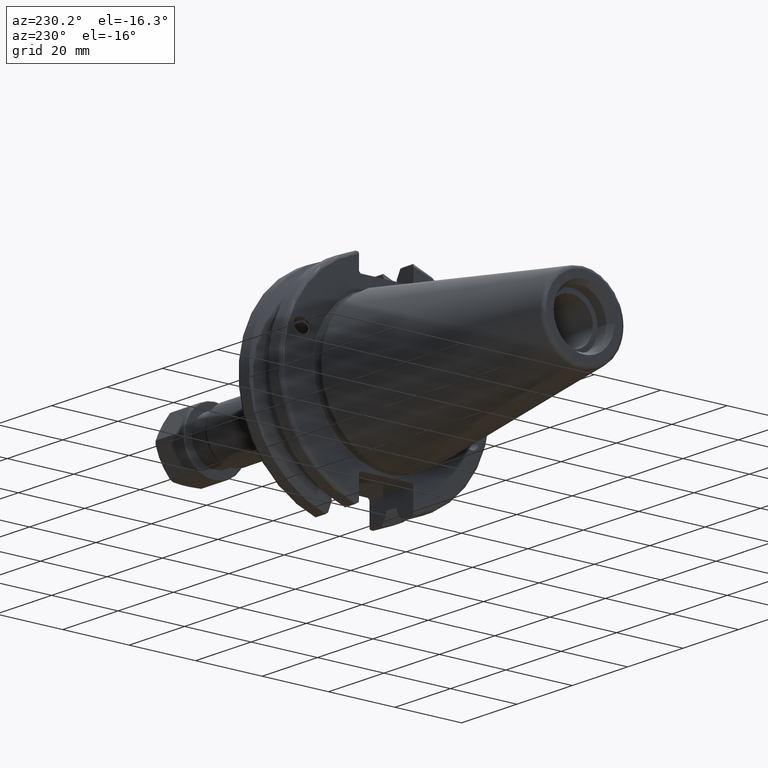
[diagram: clean part render]
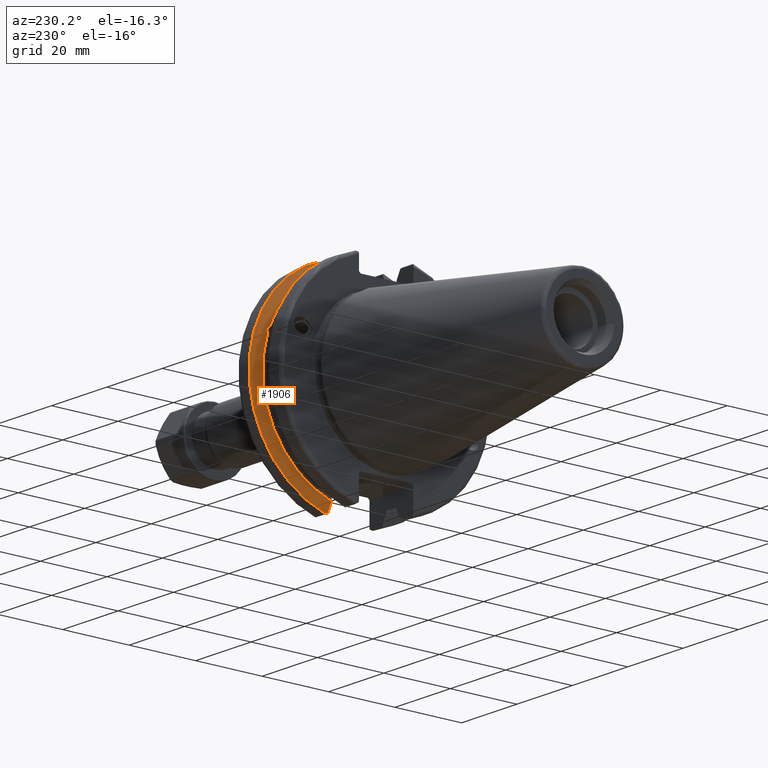
[diagram: same view with one face highlighted and labeled with its STEP entity id]
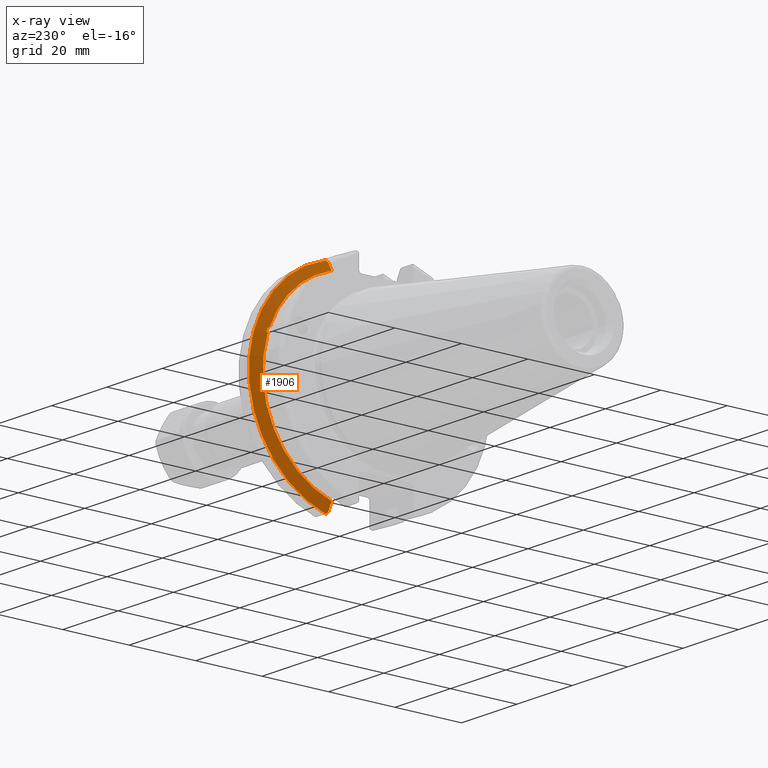
[diagram: x-ray of the same camera — body ghosted, the highlighted face saturated]
A machine part, auxiliary view. The second image highlights one B-rep face of the part: STEP entity #1906.
The next image is the same camera in x-ray: the body ghosted, the highlighted face saturated — about 0% of this face is hidden behind the body in this view.
In plain terms, the highlighted conical surface has half-angle 60 deg.
Its self-contained STEP definition (entity closure, byte-faithful):
#31=(
BOUNDED_CURVE()
B_SPLINE_CURVE(2,(#3361,#3362,#3363),.UNSPECIFIED.,.F.,.F.)
B_SPLINE_CURVE_WITH_KNOTS((3,3),(0.,0.276549142796799),.UNSPECIFIED.)
CURVE()
GEOMETRIC_REPRESENTATION_ITEM()
RATIONAL_B_SPLINE_CURVE((1.,1.00095203904259,1.00031614445126))
REPRESENTATION_ITEM('')
);
#32=(
BOUNDED_CURVE()
B_SPLINE_CURVE(2,(#3365,#3366,#3367),.UNSPECIFIED.,.F.,.F.)
B_SPLINE_CURVE_WITH_KNOTS((3,3),(0.,0.0639048713675657),.UNSPECIFIED.)
CURVE()
GEOMETRIC_REPRESENTATION_ITEM()
RATIONAL_B_SPLINE_CURVE((1.,1.00028444218289,1.00047644010584))
REPRESENTATION_ITEM('')
);
#33=(
BOUNDED_CURVE()
B_SPLINE_CURVE(2,(#3371,#3372,#3373),.UNSPECIFIED.,.F.,.F.)
B_SPLINE_CURVE_WITH_KNOTS((3,3),(0.329353533631213,0.393258405001023),
 .UNSPECIFIED.)
CURVE()
GEOMETRIC_REPRESENTATION_ITEM()
RATIONAL_B_SPLINE_CURVE((1.00047644010591,1.00028444218294,1.))
REPRESENTATION_ITEM('')
);
#34=(
BOUNDED_CURVE()
B_SPLINE_CURVE(2,(#3375,#3376,#3377),.UNSPECIFIED.,.F.,.F.)
B_SPLINE_CURVE_WITH_KNOTS((3,3),(0.0550586467390499,0.33160778953585),
 .UNSPECIFIED.)
CURVE()
GEOMETRIC_REPRESENTATION_ITEM()
RATIONAL_B_SPLINE_CURVE((1.00031614445126,1.00095203904259,1.))
REPRESENTATION_ITEM('')
);
#101=B_SPLINE_CURVE_WITH_KNOTS('',3,(#3286,#3287,#3288,#3289,#3290,#3291,
#3292,#3293),.UNSPECIFIED.,.F.,.F.,(4,2,2,4),(0.451995700189024,0.46454782854766,
0.504528771685165,0.544509714822671),.UNSPECIFIED.);
#105=B_SPLINE_CURVE_WITH_KNOTS('',3,(#3348,#3349,#3350,#3351,#3352,#3353,
#3354,#3355),.UNSPECIFIED.,.F.,.F.,(4,2,2,4),(0.544509714822671,0.584490657960176,
0.624471601097681,0.637023729456318),.UNSPECIFIED.);
#256=FACE_OUTER_BOUND('',#373,.T.);
#373=EDGE_LOOP('',(#1467,#1468,#1469,#1470,#1471,#1472,#1473,#1474,#1475));
#731=CIRCLE('',#2137,28.9593772964944);
#732=CIRCLE('',#2138,31.75);
#733=CIRCLE('',#2139,28.9593772964944);
#865=VERTEX_POINT('',#3283);
#866=VERTEX_POINT('',#3285);
#873=VERTEX_POINT('',#3346);
#874=VERTEX_POINT('',#3358);
#875=VERTEX_POINT('',#3360);
#876=VERTEX_POINT('',#3364);
#877=VERTEX_POINT('',#3368);
#878=VERTEX_POINT('',#3370);
#879=VERTEX_POINT('',#3374);
#1089=EDGE_CURVE('',#866,#865,#101,.T.);
#1097=EDGE_CURVE('',#865,#873,#105,.T.);
#1098=EDGE_CURVE('',#873,#874,#731,.T.);
#1099=EDGE_CURVE('',#874,#875,#31,.T.);
#1100=EDGE_CURVE('',#876,#875,#32,.T.);
#1101=EDGE_CURVE('',#877,#876,#732,.T.);
#1102=EDGE_CURVE('',#878,#877,#33,.T.);
#1103=EDGE_CURVE('',#878,#879,#34,.T.);
#1104=EDGE_CURVE('',#879,#866,#733,.T.);
#1467=ORIENTED_EDGE('',*,*,#1089,.T.);
#1468=ORIENTED_EDGE('',*,*,#1097,.T.);
#1469=ORIENTED_EDGE('',*,*,#1098,.T.);
#1470=ORIENTED_EDGE('',*,*,#1099,.T.);
#1471=ORIENTED_EDGE('',*,*,#1100,.F.);
#1472=ORIENTED_EDGE('',*,*,#1101,.F.);
#1473=ORIENTED_EDGE('',*,*,#1102,.F.);
#1474=ORIENTED_EDGE('',*,*,#1103,.T.);
#1475=ORIENTED_EDGE('',*,*,#1104,.T.);
#1863=CONICAL_SURFACE('',#2136,30.3546886482472,1.0471975511966);
#1906=ADVANCED_FACE('',(#256),#1863,.T.);
#2136=AXIS2_PLACEMENT_3D('',#3357,#2497,#2498);
#2137=AXIS2_PLACEMENT_3D('',#3359,#2499,#2500);
#2138=AXIS2_PLACEMENT_3D('',#3369,#2501,#2502);
#2139=AXIS2_PLACEMENT_3D('',#3378,#2503,#2504);
#2497=DIRECTION('center_axis',(1.,0.,0.));
#2498=DIRECTION('ref_axis',(0.,1.,0.));
#2499=DIRECTION('center_axis',(1.,0.,0.));
#2500=DIRECTION('ref_axis',(0.,0.,-1.));
#2501=DIRECTION('center_axis',(1.,0.,0.));
#2502=DIRECTION('ref_axis',(0.,0.,-1.));
#2503=DIRECTION('center_axis',(1.,0.,0.));
#2504=DIRECTION('ref_axis',(0.,0.,-1.));
#3283=CARTESIAN_POINT('',(13.227,27.51401829017,10.0142836826778));
#3285=CARTESIAN_POINT('',(13.042,27.4956274489925,9.09043478536247));
#3286=CARTESIAN_POINT('Ctrl Pts',(13.042,27.4956274489925,9.09043478536247));
#3287=CARTESIAN_POINT('Ctrl Pts',(13.0561204071996,27.5087667900418,9.12860597076219));
#3288=CARTESIAN_POINT('Ctrl Pts',(13.0695929817857,27.5206055003512,9.16696618806878));
#3289=CARTESIAN_POINT('Ctrl Pts',(13.122981441159,27.5642934663232,9.32791534028656));
#3290=CARTESIAN_POINT('Ctrl Pts',(13.1611197084175,27.5867382255984,9.46717946402648));
#3291=CARTESIAN_POINT('Ctrl Pts',(13.2133106446058,27.5847569104122,9.74771639360672));
#3292=CARTESIAN_POINT('Ctrl Pts',(13.227,27.559599249844,9.8890510252165));
#3293=CARTESIAN_POINT('Ctrl Pts',(13.227,27.51401829017,10.0142836826778));
#3346=CARTESIAN_POINT('',(13.042,26.9060914640648,10.7101715919071));
#3348=CARTESIAN_POINT('Ctrl Pts',(13.227,27.51401829017,10.0142836826778));
#3349=CARTESIAN_POINT('Ctrl Pts',(13.227,27.4684373304961,10.139516340139));
#3350=CARTESIAN_POINT('Ctrl Pts',(13.2133106446058,27.3968610665578,10.2639559818059));
#3351=CARTESIAN_POINT('Ctrl Pts',(13.1611197084175,27.2180531796526,10.4801333026531));
#3352=CARTESIAN_POINT('Ctrl Pts',(13.122981441159,27.1113422433189,10.5723885976054));
#3353=CARTESIAN_POINT('Ctrl Pts',(13.0695929817857,26.9744191989197,10.6676007180673));
#3354=CARTESIAN_POINT('Ctrl Pts',(13.0561204071996,26.9406927482839,10.6893765730703));
#3355=CARTESIAN_POINT('Ctrl Pts',(13.042,26.9060914640648,10.7101715919071));
#3357=CARTESIAN_POINT('Origin',(13.8475833845378,0.,0.));
#3358=CARTESIAN_POINT('',(13.042,8.19,27.7771386827498));
#3359=CARTESIAN_POINT('Origin',(13.042,0.,0.));
#3360=CARTESIAN_POINT('',(14.3744146964874,8.19,30.1755016258903));
#3361=CARTESIAN_POINT('Ctrl Pts',(13.042,8.19,27.7771386827498));
#3362=CARTESIAN_POINT('Ctrl Pts',(13.6806364384741,8.19,28.930368953967));
#3363=CARTESIAN_POINT('Ctrl Pts',(14.3744146964874,8.19,30.1755016258903));
#3364=CARTESIAN_POINT('',(14.6531667690756,8.67204822802685,30.5427254764662));
#3365=CARTESIAN_POINT('Ctrl Pts',(14.6531667690756,8.67204822802686,30.5427254764662));
#3366=CARTESIAN_POINT('Ctrl Pts',(14.5121085187837,8.42917748262643,30.3577067892629));
#3367=CARTESIAN_POINT('Ctrl Pts',(14.3744146964874,8.19,30.1755016258903));
#3368=CARTESIAN_POINT('',(14.6531667690756,8.67204822802685,-30.5427254764662));
#3369=CARTESIAN_POINT('Origin',(14.6531667690756,0.,0.));
#3370=CARTESIAN_POINT('',(14.3744146964874,8.19,-30.1755016258903));
#3371=CARTESIAN_POINT('Ctrl Pts',(14.3744146964874,8.19,-30.1755016258903));
#3372=CARTESIAN_POINT('Ctrl Pts',(14.5121085187884,8.42917748263462,-30.3577067892692));
#3373=CARTESIAN_POINT('Ctrl Pts',(14.6531667690756,8.67204822802685,-30.5427254764662));
#3374=CARTESIAN_POINT('',(13.042,8.19,-27.7771386827498));
#3375=CARTESIAN_POINT('Ctrl Pts',(14.3744146964874,8.19,-30.1755016258903));
#3376=CARTESIAN_POINT('Ctrl Pts',(13.6806364384741,8.19,-28.930368953967));
#3377=CARTESIAN_POINT('Ctrl Pts',(13.042,8.19,-27.7771386827498));
#3378=CARTESIAN_POINT('Origin',(13.042,0.,0.));